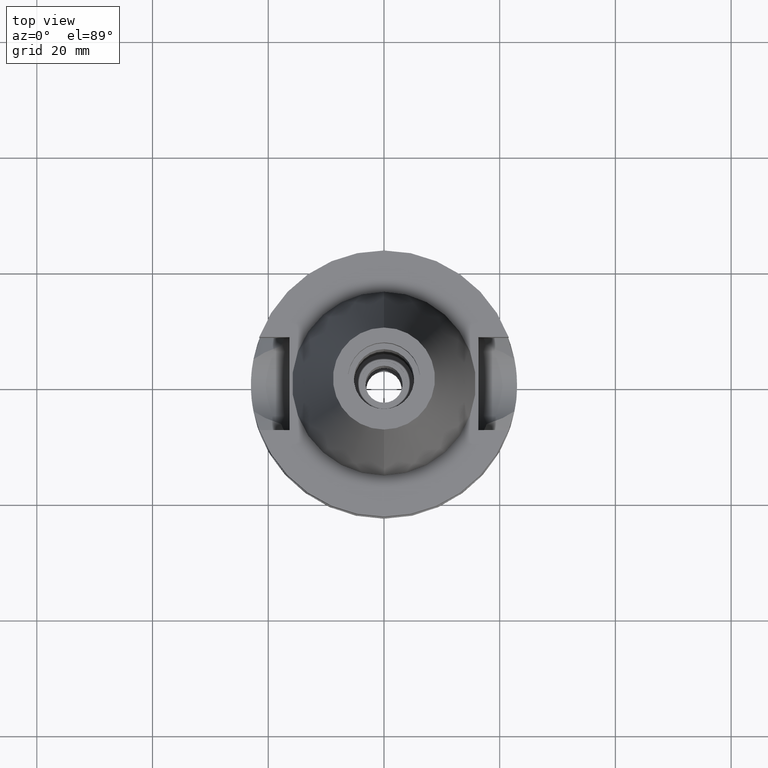
[diagram: clean part render]
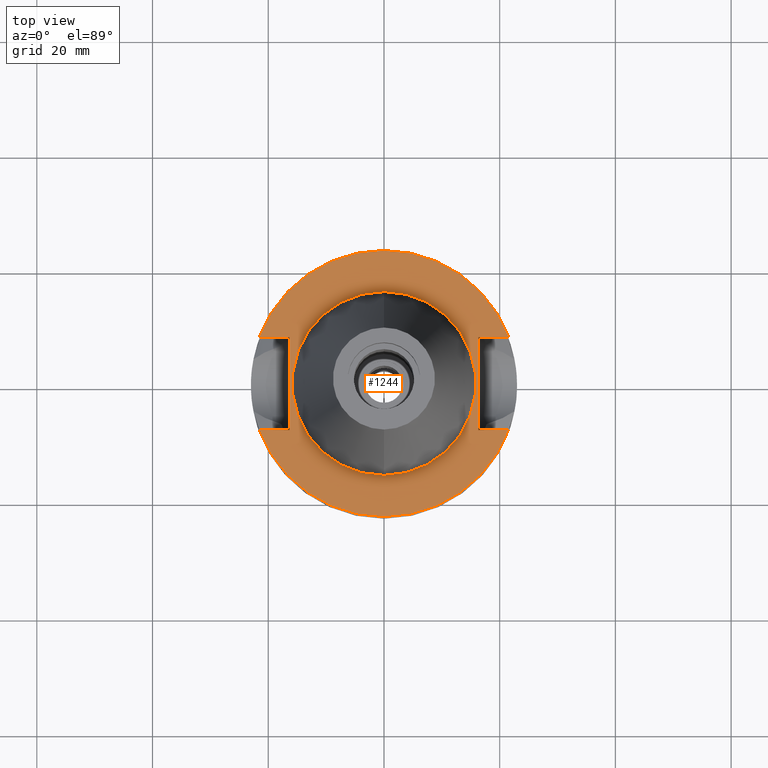
[diagram: same view with one face highlighted and labeled with its STEP entity id]
A machine part, top view. The second image highlights one B-rep face of the part: STEP entity #1244.
In plain terms, the highlighted planar face has unit normal (0, 0, -1).
Its self-contained STEP definition (entity closure, byte-faithful):
#25 = DIRECTION ( 'NONE',  ( -1.000000000000000000, 9.347030801892000173E-14, 0.0000000000000000000 ) ) ;
#102 = CARTESIAN_POINT ( 'NONE',  ( -16.29999999999999716, -8.050000000000000711, -1.000000000000000000 ) ) ;
#200 = DIRECTION ( 'NONE',  ( 0.0000000000000000000, -1.000000000000000000, 0.0000000000000000000 ) ) ;
#215 = DIRECTION ( 'NONE',  ( 0.0000000000000000000, 0.0000000000000000000, -1.000000000000000000 ) ) ;
#222 = CIRCLE ( 'NONE', #1862, 23.00000000000000000 ) ;
#268 = EDGE_CURVE ( 'NONE', #2568, #2312, #1148, .T. ) ;
#287 = DIRECTION ( 'NONE',  ( 0.0000000000000000000, 1.000000000000000000, 0.0000000000000000000 ) ) ;
#313 = CARTESIAN_POINT ( 'NONE',  ( 16.29999999999999716, -8.050000000000000711, -1.000000000000000000 ) ) ;
#359 = EDGE_CURVE ( 'NONE', #373, #1878, #1418, .T. ) ;
#373 = VERTEX_POINT ( 'NONE', #2601 ) ;
#419 = EDGE_CURVE ( 'NONE', #896, #2312, #222, .T. ) ;
#437 = CARTESIAN_POINT ( 'NONE',  ( 0.0000000000000000000, 1.881302412850000052E-14, -0.9999999999999000799 ) ) ;
#468 = VERTEX_POINT ( 'NONE', #1505 ) ;
#469 = PLANE ( 'NONE',  #2838 ) ;
#471 = CARTESIAN_POINT ( 'NONE',  ( -21.54524309446999908, -8.050000000000000711, -1.000000000000000000 ) ) ;
#482 = CARTESIAN_POINT ( 'NONE',  ( -21.54524309446999908, 8.050000000000000711, -1.000000000000000000 ) ) ;
#491 = VERTEX_POINT ( 'NONE', #2614 ) ;
#569 = DIRECTION ( 'NONE',  ( 0.0000000000000000000, -1.000000000000000000, 0.0000000000000000000 ) ) ;
#607 = ORIENTED_EDGE ( 'NONE', *, *, #2370, .F. ) ;
#615 = VECTOR ( 'NONE', #25, 1000.000000000000000 ) ;
#646 = AXIS2_PLACEMENT_3D ( 'NONE', #2633, #2184, #2431 ) ;
#738 = VECTOR ( 'NONE', #1190, 1000.000000000000000 ) ;
#742 = ORIENTED_EDGE ( 'NONE', *, *, #1080, .F. ) ;
#777 = CARTESIAN_POINT ( 'NONE',  ( -16.29999999999999716, 8.050000000000000711, -1.000000000000000000 ) ) ;
#896 = VERTEX_POINT ( 'NONE', #1299 ) ;
#935 = DIRECTION ( 'NONE',  ( 0.0000000000000000000, 0.0000000000000000000, 1.000000000000000000 ) ) ;
#951 = ORIENTED_EDGE ( 'NONE', *, *, #359, .F. ) ;
#975 = VERTEX_POINT ( 'NONE', #2215 ) ;
#1066 = CARTESIAN_POINT ( 'NONE',  ( 16.29999999999999716, -8.050000000000000711, -1.000000000000000000 ) ) ;
#1080 = EDGE_CURVE ( 'NONE', #975, #1364, #2841, .T. ) ;
#1081 = DIRECTION ( 'NONE',  ( 1.000000000000000000, 9.380896855521999773E-14, 0.0000000000000000000 ) ) ;
#1128 = DIRECTION ( 'NONE',  ( 0.0000000000000000000, 1.000000000000000000, 0.0000000000000000000 ) ) ;
#1148 = LINE ( 'NONE', #1415, #2103 ) ;
#1169 = DIRECTION ( 'NONE',  ( 0.0000000000000000000, 0.0000000000000000000, -1.000000000000000000 ) ) ;
#1187 = LINE ( 'NONE', #2128, #1737 ) ;
#1190 = DIRECTION ( 'NONE',  ( 1.000000000000000000, -9.347030801892000173E-14, 0.0000000000000000000 ) ) ;
#1205 = EDGE_CURVE ( 'NONE', #491, #468, #1267, .T. ) ;
#1244 = ADVANCED_FACE ( 'NONE', ( #1606, #1393 ), #469, .F. ) ;
#1267 = LINE ( 'NONE', #2227, #2738 ) ;
#1299 = CARTESIAN_POINT ( 'NONE',  ( 21.54524309446999908, -8.050000000000000711, -1.000000000000000000 ) ) ;
#1322 = CARTESIAN_POINT ( 'NONE',  ( 0.0000000000000000000, 15.87500000000000000, -0.9999999999999000799 ) ) ;
#1364 = VERTEX_POINT ( 'NONE', #482 ) ;
#1393 = FACE_BOUND ( 'NONE', #2154, .T. ) ;
#1411 = CARTESIAN_POINT ( 'NONE',  ( 0.0000000000000000000, 1.212400331155999925E-14, -1.000000000000000000 ) ) ;
#1415 = CARTESIAN_POINT ( 'NONE',  ( -16.29999999999999716, -8.050000000000000711, -1.000000000000000000 ) ) ;
#1418 = CIRCLE ( 'NONE', #646, 15.87500000000000000 ) ;
#1462 = CARTESIAN_POINT ( 'NONE',  ( 0.0000000000000000000, 1.881302412850000052E-14, -0.9999999999999000799 ) ) ;
#1469 = LINE ( 'NONE', #313, #738 ) ;
#1505 = CARTESIAN_POINT ( 'NONE',  ( 21.54524309446999908, 8.050000000000000711, -0.9999999999999000799 ) ) ;
#1539 = AXIS2_PLACEMENT_3D ( 'NONE', #437, #935, #1128 ) ;
#1565 = ORIENTED_EDGE ( 'NONE', *, *, #2965, .F. ) ;
#1577 = ORIENTED_EDGE ( 'NONE', *, *, #2715, .F. ) ;
#1592 = ORIENTED_EDGE ( 'NONE', *, *, #1777, .F. ) ;
#1600 = DIRECTION ( 'NONE',  ( 0.0000000000000000000, 1.000000000000000000, 0.0000000000000000000 ) ) ;
#1606 = FACE_OUTER_BOUND ( 'NONE', #2756, .T. ) ;
#1673 = VECTOR ( 'NONE', #200, 1000.000000000000000 ) ;
#1737 = VECTOR ( 'NONE', #287, 1000.000000000000000 ) ;
#1777 = EDGE_CURVE ( 'NONE', #1364, #468, #1807, .T. ) ;
#1807 = CIRCLE ( 'NONE', #2806, 23.00000000000000000 ) ;
#1855 = ORIENTED_EDGE ( 'NONE', *, *, #1205, .T. ) ;
#1862 = AXIS2_PLACEMENT_3D ( 'NONE', #1462, #2889, #569 ) ;
#1878 = VERTEX_POINT ( 'NONE', #1322 ) ;
#2103 = VECTOR ( 'NONE', #2339, 1000.000000000000000 ) ;
#2128 = CARTESIAN_POINT ( 'NONE',  ( -16.29999999999999716, -8.050000000000000711, -1.000000000000000000 ) ) ;
#2154 = EDGE_LOOP ( 'NONE', ( #607, #951 ) ) ;
#2184 = DIRECTION ( 'NONE',  ( 0.0000000000000000000, 0.0000000000000000000, 1.000000000000000000 ) ) ;
#2215 = CARTESIAN_POINT ( 'NONE',  ( -16.29999999999999716, 8.050000000000000711, -1.000000000000000000 ) ) ;
#2227 = CARTESIAN_POINT ( 'NONE',  ( 16.29999999999999716, 8.050000000000000711, -1.000000000000000000 ) ) ;
#2275 = CARTESIAN_POINT ( 'NONE',  ( 0.0000000000000000000, 1.881302412850000052E-14, -0.9999999999999000799 ) ) ;
#2312 = VERTEX_POINT ( 'NONE', #471 ) ;
#2339 = DIRECTION ( 'NONE',  ( -1.000000000000000000, -9.313164748262000573E-14, 0.0000000000000000000 ) ) ;
#2370 = EDGE_CURVE ( 'NONE', #1878, #373, #2593, .T. ) ;
#2372 = ORIENTED_EDGE ( 'NONE', *, *, #2505, .F. ) ;
#2431 = DIRECTION ( 'NONE',  ( 0.0000000000000000000, -1.000000000000000000, 0.0000000000000000000 ) ) ;
#2463 = VERTEX_POINT ( 'NONE', #1066 ) ;
#2502 = ORIENTED_EDGE ( 'NONE', *, *, #268, .T. ) ;
#2505 = EDGE_CURVE ( 'NONE', #2463, #896, #1469, .T. ) ;
#2549 = ORIENTED_EDGE ( 'NONE', *, *, #419, .F. ) ;
#2551 = CARTESIAN_POINT ( 'NONE',  ( 16.29999999999999716, 8.050000000000000711, -1.000000000000000000 ) ) ;
#2568 = VERTEX_POINT ( 'NONE', #102 ) ;
#2593 = CIRCLE ( 'NONE', #1539, 15.87500000000000000 ) ;
#2601 = CARTESIAN_POINT ( 'NONE',  ( 0.0000000000000000000, -15.87500000000000000, -0.9999999999999000799 ) ) ;
#2614 = CARTESIAN_POINT ( 'NONE',  ( 16.29999999999999716, 8.050000000000000711, -1.000000000000000000 ) ) ;
#2633 = CARTESIAN_POINT ( 'NONE',  ( 0.0000000000000000000, 1.881302412850000052E-14, -0.9999999999999000799 ) ) ;
#2715 = EDGE_CURVE ( 'NONE', #2568, #975, #1187, .T. ) ;
#2738 = VECTOR ( 'NONE', #1081, 1000.000000000000000 ) ;
#2756 = EDGE_LOOP ( 'NONE', ( #2502, #2549, #2372, #1565, #1855, #1592, #742, #1577 ) ) ;
#2759 = LINE ( 'NONE', #2551, #1673 ) ;
#2776 = DIRECTION ( 'NONE',  ( 0.0000000000000000000, -1.000000000000000000, 0.0000000000000000000 ) ) ;
#2806 = AXIS2_PLACEMENT_3D ( 'NONE', #2275, #215, #1600 ) ;
#2838 = AXIS2_PLACEMENT_3D ( 'NONE', #1411, #1169, #2776 ) ;
#2841 = LINE ( 'NONE', #777, #615 ) ;
#2889 = DIRECTION ( 'NONE',  ( 0.0000000000000000000, 0.0000000000000000000, -1.000000000000000000 ) ) ;
#2965 = EDGE_CURVE ( 'NONE', #491, #2463, #2759, .T. ) ;